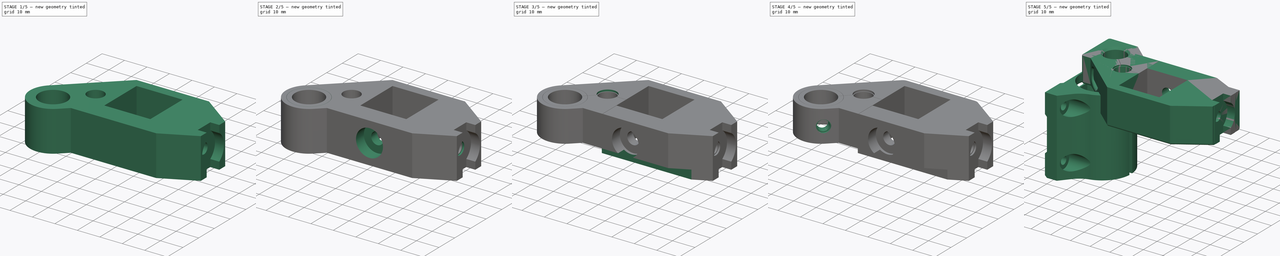
[diagram: build sequence overview — one tinted view per stage of 5, left to right]
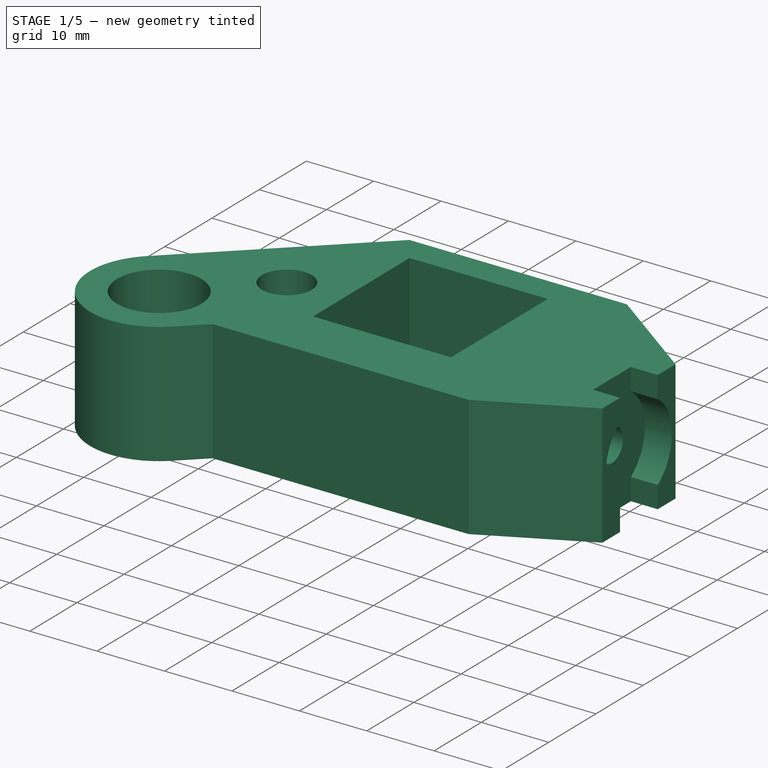
[diagram: stage 1 of 5 — iso view after this stage's code; geometry added in this stage tinted green]
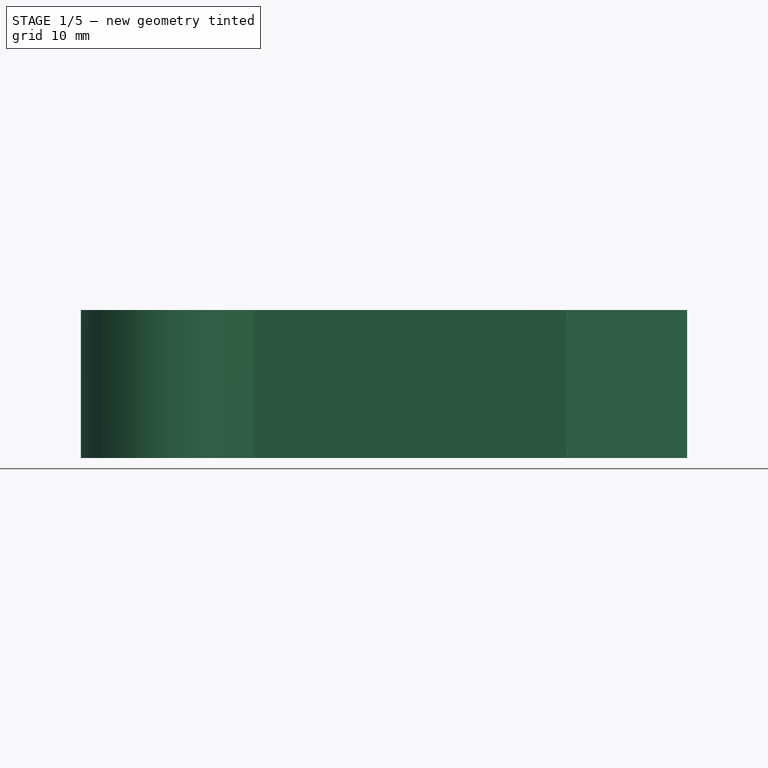
[diagram: stage 1 of 5 — front view after this stage's code; geometry added in this stage tinted green]
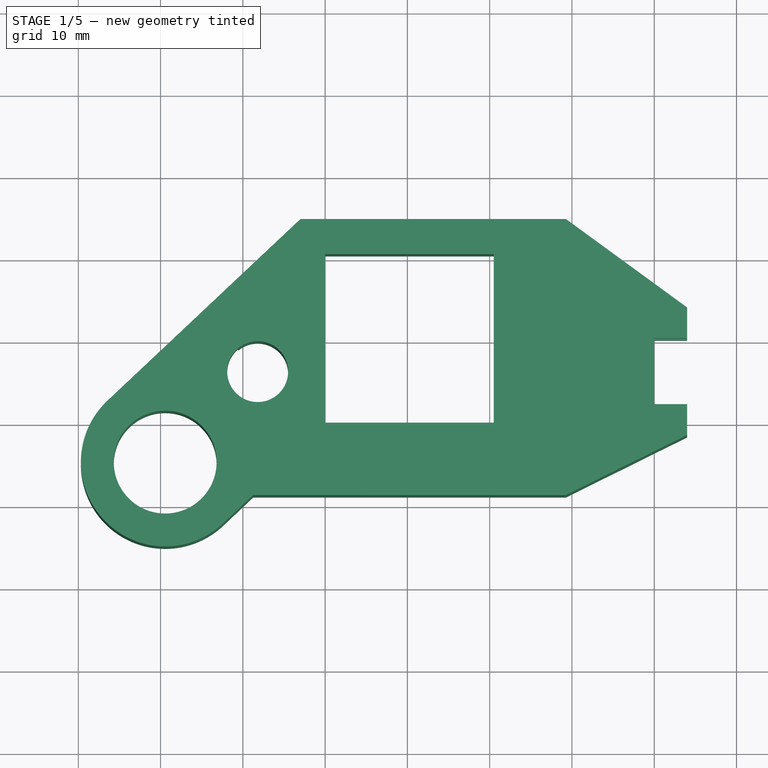
[diagram: stage 1 of 5 — top view after this stage's code; geometry added in this stage tinted green]
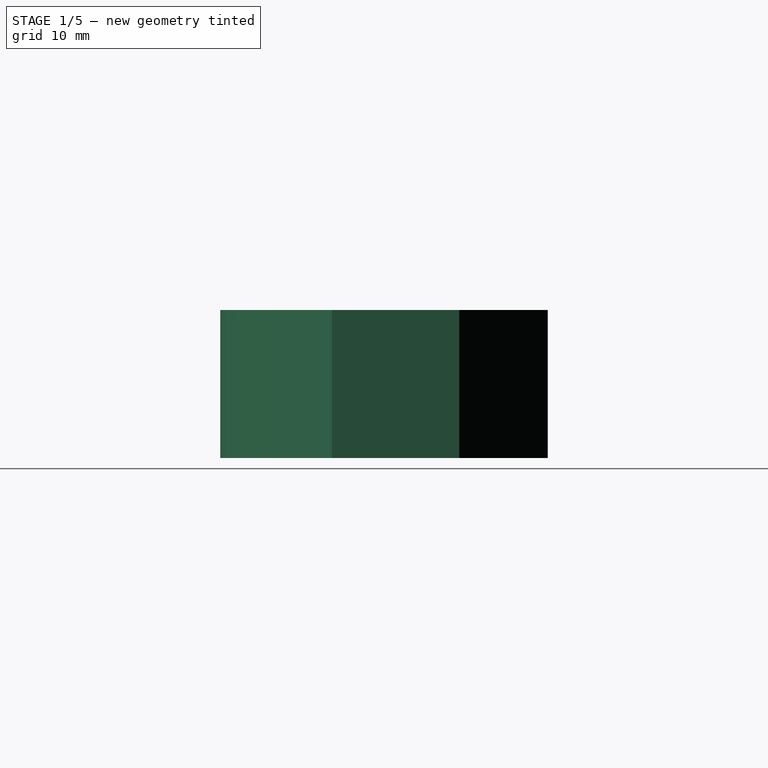
[diagram: stage 1 of 5 — right view after this stage's code; geometry added in this stage tinted green]
FCSTD DOCUMENT  (FreeCAD 0.17R13528 (Git))
Label: y_corner_left_v1.4-12mm
License: CreativeCommons Attribution-ShareAlike
LicenseURL: http://creativecommons.org/licenses/by-sa/4.0/
objects: Sketcher::SketchObject×14, PartDesign::Pocket×13, PartDesign::Fillet×3, Part::FeaturePython×2, PartDesign::Pad×1, PartDesign::Body×1, Part::Mirroring×1
note: 49 computed .brp shape members not serialized (recipe doc carries the construction recipe); baked Part::Feature solids carry a one-line shape summary decoded from their .brp

FEATURE [Sketcher::SketchObject] Sketch
  MapMode = 5
  Support = -> [XY_Plane]
  sketch-geometry (19):
    g0: LineSegment StartX=44 StartY=14 StartZ=0 EndX=29.2653 EndY=24.75 EndZ=0
    g1: LineSegment StartX=29.2653 StartY=24.75 StartZ=0 EndX=-3 EndY=24.75 EndZ=0
    g2: LineSegment StartX=-3 StartY=24.75 StartZ=0 EndX=-26.4652 EndY=2.66385 EndZ=0
    g3: Circle CenterX=-8.2 CenterY=6.2 CenterZ=0 NormalX=0 NormalY=0 NormalZ=1 AngleXU=0 Radius=3.7
    g4: Circle CenterX=-19.44 CenterY=-4.8 CenterZ=0 NormalX=0 NormalY=0 NormalZ=1 AngleXU=0 Radius=6.25
    g5: LineSegment StartX=0 StartY=0 StartZ=0 EndX=20.5 EndY=0 EndZ=0
    g6: LineSegment StartX=20.5 StartY=0 StartZ=0 EndX=20.5 EndY=20.5 EndZ=0
    g7: LineSegment StartX=20.5 StartY=20.5 StartZ=0 EndX=0 EndY=20.5 EndZ=0
    g8: LineSegment StartX=0 StartY=20.5 StartZ=0 EndX=0 EndY=0 EndZ=0
    g9: LineSegment StartX=44 StartY=14 StartZ=0 EndX=44 EndY=-1.5 EndZ=0
    g10: LineSegment StartX=44 StartY=-1.5 StartZ=0 EndX=29.2653 EndY=-8.8 EndZ=0
    g11: LineSegment StartX=29.2653 StartY=-8.8 StartZ=0 EndX=-8.73467 EndY=-8.8 EndZ=0
    g12: LineSegment [constr] StartX=-14.6377 StartY=-0.8 StartZ=0 EndX=7.36234 EndY=-0.8 EndZ=0
    g13: LineSegment [constr] StartX=7.36234 StartY=-0.8 StartZ=0 EndX=7.36234 EndY=-8.8 EndZ=0
    g14: LineSegment [constr] StartX=7.36234 StartY=-8.8 StartZ=0 EndX=-14.6377 EndY=-8.8 EndZ=0
    g15: LineSegment [constr] StartX=-14.6377 StartY=-8.8 StartZ=0 EndX=-14.6377 EndY=-0.8 EndZ=0
    g16: LineSegment [constr] StartX=29.2653 StartY=24.75 StartZ=0 EndX=29.2653 EndY=-8.8 EndZ=0
    g17: LineSegment StartX=-8.73467 StartY=-8.8 StartZ=0 EndX=-12.4148 EndY=-12.2639 EndZ=0
    g18: ArcOfCircle CenterX=-19.44 CenterY=-4.8 CenterZ=0 NormalX=0 NormalY=0 NormalZ=1 AngleXU=0 Radius=10.25 StartAngle=2.32593 EndAngle=5.46752
  constraints (53):
    c: Coincident(g0,g1)
    c: Coincident(g1,g2)
    c: Coincident(g5,g6)
    c: Coincident(g6,g7)
    c: Coincident(g7,g8)
    c: Coincident(g8,g5)
    c: Horizontal(g5)
    c: Horizontal(g7)
    c: Vertical(g6)
    c: Vertical(g8)
    c: Coincident(g5,g-1)
    c: Horizontal(g1)
    c: DistanceX(g1) = -3
    c: DistanceY(g1) = 24.75
    c: DistanceY(g0,g0) = 10.75
    c: DistanceX(g3) = -8.2
    c: DistanceY(g3) = 6.2
    c: Radius(g3) = 3.7
    c: DistanceY(g4) = -4.8
    c: Radius(g4) = 6.25
    c: Equal(g5,g8)
    c: DistanceY(g8,g8) = 20.5
    c: DistanceX(g0) = 44
    c: Coincident(g9,g10)
    c: Coincident(g10,g11)
    c: Vertical(g9)
    c: DistanceY(g9,g9) = 15.5
    c: Coincident(g0,g9)
    c: Coincident(g12,g13)
    c: Coincident(g13,g14)
    c: Coincident(g14,g15)
    c: Coincident(g15,g12)
    c: Horizontal(g12)
    c: Horizontal(g14)
    c: Vertical(g13)
    c: Vertical(g15)
    c: DistanceY(g13,g13) = 8
    c: PointOnObject(g12,g4)
    c: PointOnObject(g14,g4)
    c: Horizontal(g11)
    c: Coincident(g10,g16)
    c: Coincident(g0,g16)
    c: Vertical(g16)
    c: PointOnObject(g11,g14)
    c: DistanceX(g12,g12) = 22
    c: Parallel(g17,g2)
    c: DistanceX(g11,g10) = 38
    c: Coincident(g11,g17)
    c: Radius(g18) = 10.25
    c: DistanceX(g4) = -19.44
    c: Coincident(g4,g18)
    c: Tangent(g17,g18) = 1.5708
    c: Tangent(g2,g18) = -1.5708
FEATURE [Sketcher::SketchObject] Sketch001
  MapMode = 5
  Placement = pos=(0,-8.8,0) rot=(1,0,0;1.5708rad)
  sketch-geometry (1):
    g0: Circle CenterX=10.25 CenterY=-9 CenterZ=0 NormalX=0 NormalY=0 NormalZ=1 AngleXU=0 Radius=2.75
  constraints (3):
    c: DistanceX(g0) = 10.25
    c: DistanceY(g0) = -9
    c: Radius(g0) = 2.75
FEATURE [Sketcher::SketchObject] Sketch006
  MapMode = 5
  sketch-geometry (12):
    g0: LineSegment StartX=0 StartY=6.25 StartZ=0 EndX=-4.50034 EndY=6.25 EndZ=0
    g1: LineSegment StartX=-4.50034 StartY=6.25 StartZ=0 EndX=-4.50034 EndY=6.15 EndZ=0
    g2: LineSegment StartX=-4.50034 StartY=6.15 StartZ=0 EndX=0 EndY=6.15 EndZ=0
    g3: LineSegment StartX=0 StartY=6.15 StartZ=0 EndX=0 EndY=6.25 EndZ=0
    g4: LineSegment StartX=-10.8514 StartY=3.61928 StartZ=0 EndX=-15.644 EndY=-1.17332 EndZ=0
    g5: LineSegment StartX=-15.644 StartY=-1.17332 StartZ=0 EndX=-15.5756 EndY=-1.24628 EndZ=0
    g6: LineSegment StartX=-15.5756 StartY=-1.24628 StartZ=0 EndX=-10.7807 EndY=3.54861 EndZ=0
    g7: LineSegment StartX=-10.7807 StartY=3.54861 StartZ=0 EndX=-10.8514 EndY=3.61928 EndZ=0
    g8: LineSegment StartX=0 StartY=0 StartZ=0 EndX=0.1 EndY=0 EndZ=0
    g9: LineSegment StartX=0.1 StartY=0 StartZ=0 EndX=0.1 EndY=-8.75 EndZ=0
    g10: LineSegment StartX=0.1 StartY=-8.75 StartZ=0 EndX=0 EndY=-8.75 EndZ=0
    g11: LineSegment StartX=0 StartY=-8.75 StartZ=0 EndX=0 EndY=0 EndZ=0
  constraints (30):
    c: Coincident(g0,g1)
    c: Coincident(g1,g2)
    c: Coincident(g2,g3)
    c: Coincident(g3,g0)
    c: Horizontal(g0)
    c: Horizontal(g2)
    c: Vertical(g1)
    c: Vertical(g3)
    c: Coincident(g4,g5)
    c: Coincident(g5,g6)
    c: Coincident(g6,g7)
    c: Coincident(g7,g4)
    c: DistanceY(g1,g1) = 0.1
    c: Perpendicular(g6,g7)
    c: Perpendicular(g4,g7)
    c: Angle(g6) = 0.785398
    c: Distance(g5) = 0.1
    c: Coincident(g8,g9)
    c: Coincident(g9,g10)
    c: Coincident(g10,g11)
    c: Coincident(g11,g8)
    c: Horizontal(g8)
    c: Horizontal(g10)
    c: Vertical(g9)
    c: Vertical(g11)
    c: PointOnObject(g8,g-1)
    c: DistanceX(g8,g8) = 0.1
    c: PointOnObject(g2,g-2)
    c: Coincident(g8,g-1)
    c: DistanceY(g9,g9) = 8.75
FEATURE [Sketcher::SketchObject] Sketch012
  MapMode = 5
  Placement = pos=(0,-8.8,0) rot=(1,0,0;1.5708rad)
  sketch-geometry (1):
    g0: Circle CenterX=10.25 CenterY=-9 CenterZ=0 NormalX=0 NormalY=0 NormalZ=1 AngleXU=0 Radius=6
  constraints (3):
    c: Radius(g0) = 6
    c: DistanceX(g0) = 10.25
    c: DistanceY(g0) = -9
FEATURE [PartDesign::Pad] Pad
  Length = 18
  Length2 = 100
  Profile = -> Sketch
  Refine = true
  Reversed = true
  Type = 0
FEATURE [Sketcher::SketchObject] Sketch002
  ExternalGeometry = -> [Pad]
  MapMode = 5
  Placement = pos=(0,0,-18) rot=(1,0,0;3.14159rad)
  sketch-geometry (6):
    g0: Circle [constr] CenterX=-19.44 CenterY=4.8 CenterZ=0 NormalX=0 NormalY=0 NormalZ=1 AngleXU=0 Radius=16.5
    g1: LineSegment StartX=-8.73467 StartY=8.8 StartZ=0 EndX=-3.43219 EndY=8.8 EndZ=0
    g2: LineSegment StartX=-10.0027 StartY=0.8 StartZ=0 EndX=-3.43219 EndY=0.8 EndZ=0
    g3: ArcOfCircle CenterX=-19.44 CenterY=4.8 CenterZ=0 NormalX=0 NormalY=0 NormalZ=1 AngleXU=0 Radius=16.5 StartAngle=0.244864 EndAngle=6.03832
    g4: ArcOfCircle CenterX=-19.44 CenterY=4.8 CenterZ=0 NormalX=0 NormalY=0 NormalZ=1 AngleXU=0 Radius=10.25 StartAngle=0.815664 EndAngle=5.88229
    g5: LineSegment StartX=-12.4148 StartY=12.2639 StartZ=0 EndX=-8.73467 EndY=8.8 EndZ=0
  constraints (18):
    c: Radius(g0) = 16.5
    c: DistanceX(g0) = -19.44
    c: DistanceY(g0) = 4.8
    c: Horizontal(g2)
    c: Horizontal(g1)
    c: DistanceY(g2,g1) = 8
    c: PointOnObject(g2,g0)
    c: PointOnObject(g1,g0)
    c: Coincident(g0,g3)
    c: Coincident(g1,g3)
    c: Coincident(g2,g3)
    c: Coincident(g0,g4)
    c: Coincident(g2,g4)
    c: Radius(g4) = 10.25
    c: DistanceY(g2,g0) = 4
    c: Coincident(g1,g5)
    c: Coincident(g1,g-3)
    c: Tangent(g4,g5) = 1.5708
FEATURE [PartDesign::Pocket] Pocket
  BaseFeature = -> Pad
  Length = 9
  Length2 = 100
  Profile = -> Sketch002
  Refine = true
  Type = 0
FEATURE [Sketcher::SketchObject] Sketch004
  MapMode = 5
  Placement = pos=(44,0,0) rot=(0.57735,0.57735,0.57735;2.0944rad)
  Support = -> [Pocket]
  sketch-geometry (8):
    g0: ArcOfCircle CenterX=6.25 CenterY=-9 CenterZ=0 NormalX=0 NormalY=0 NormalZ=1 AngleXU=0 Radius=7.00446 StartAngle=5.32019 EndAngle=7.24618
    g1: LineSegment StartX=2.25 StartY=0 StartZ=0 EndX=10.25 EndY=0 EndZ=0
    g2: LineSegment StartX=10.25 StartY=0 StartZ=0 EndX=10.25 EndY=-3.25 EndZ=0
    g3: LineSegment StartX=10.25 StartY=-18 StartZ=0 EndX=2.25 EndY=-18 EndZ=0
    g4: LineSegment StartX=2.25 StartY=-18 StartZ=0 EndX=2.25 EndY=-14.75 EndZ=0
    g5: LineSegment StartX=2.25 StartY=-3.25 StartZ=0 EndX=2.25 EndY=0 EndZ=0
    g6: LineSegment StartX=10.25 StartY=-14.75 StartZ=0 EndX=10.25 EndY=-18 EndZ=0
    g7: ArcOfCircle CenterX=6.25 CenterY=-9 CenterZ=0 NormalX=0 NormalY=0 NormalZ=1 AngleXU=0 Radius=7.00446 StartAngle=2.1786 EndAngle=4.10459
  constraints (23):
    c: Coincident(g1,g2)
    c: Coincident(g6,g3)
    c: Coincident(g3,g4)
    c: Coincident(g5,g1)
    c: Horizontal(g1)
    c: Horizontal(g3)
    c: Vertical(g2)
    c: PointOnObject(g1,g-1)
    c: DistanceY(g4,g5) = 18
    c: DistanceX(g1) = 2.25
    c: DistanceX(g1,g1) = 8
    c: Tangent(g4,g5)
    c: Tangent(g2,g6)
    c: Coincident(g0,g6)
    c: Coincident(g7,g4)
    c: Equal(g0,g7)
    c: Coincident(g0,g2)
    c: Coincident(g7,g5)
    c: Coincident(g0,g7)
    c: Equal(g5,g2)
    c: Equal(g2,g6)
    c: Equal(g6,g4)
    c: DistanceY(g4,g4) = 3.25
FEATURE [PartDesign::Pocket] Pocket001
  BaseFeature = -> Pocket
  Length = 4
  Length2 = 100
  Profile = -> Sketch004
  Refine = true
  Type = 0
FEATURE [Sketcher::SketchObject] Sketch005
  MapMode = 5
  Placement = pos=(40,0,0) rot=(0.57735,0.57735,0.57735;2.0944rad)
  Support = -> [Pocket001]
  sketch-geometry (1):
    g0: Circle CenterX=6.25 CenterY=-9 CenterZ=0 NormalX=0 NormalY=0 NormalZ=1 AngleXU=0 Radius=2.35
  constraints (1):
    c: Radius(g0) = 2.35
FEATURE [PartDesign::Pocket] Pocket002
  BaseFeature = -> Pocket001
  Length = 7
  Length2 = 100
  Profile = -> Sketch005
  Refine = true
  Type = 0
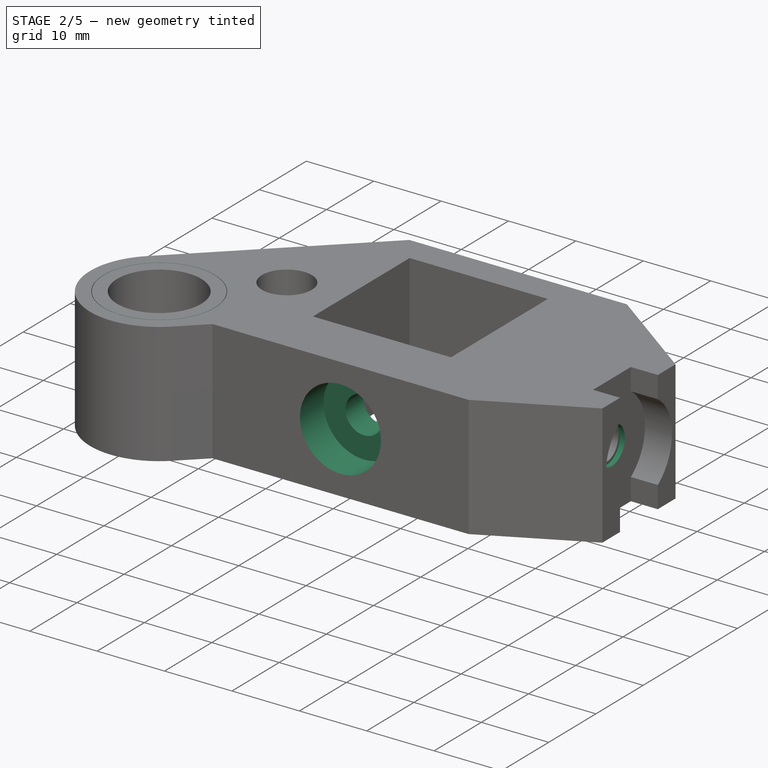
[diagram: stage 2 of 5 — iso view after this stage's code; geometry added in this stage tinted green]
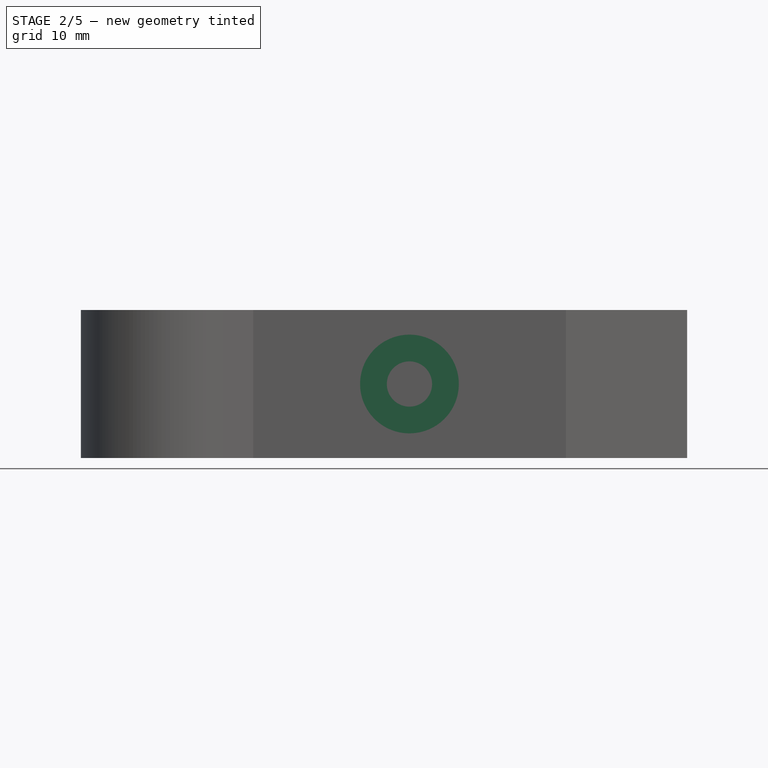
[diagram: stage 2 of 5 — front view after this stage's code; geometry added in this stage tinted green]
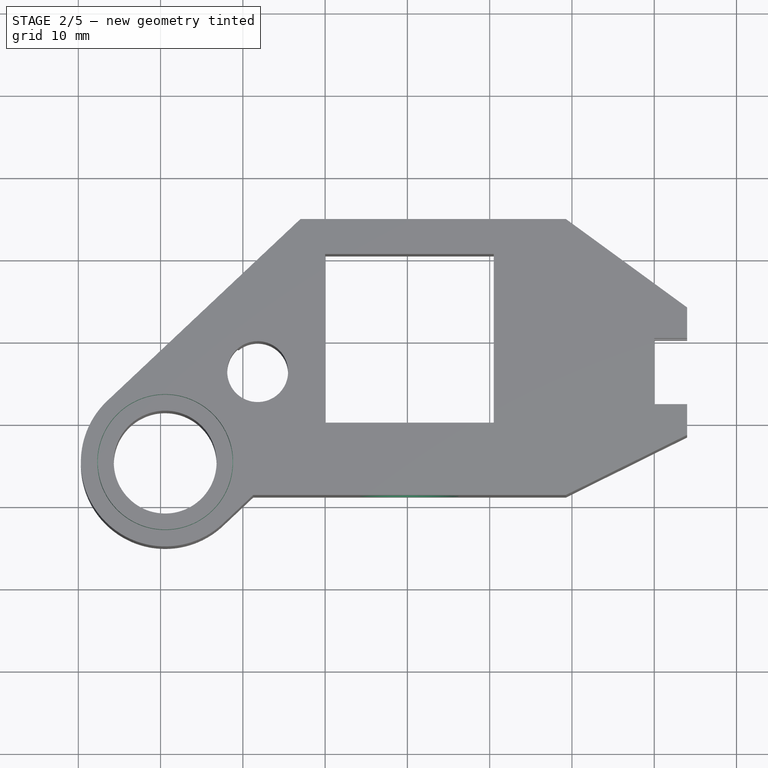
[diagram: stage 2 of 5 — top view after this stage's code; geometry added in this stage tinted green]
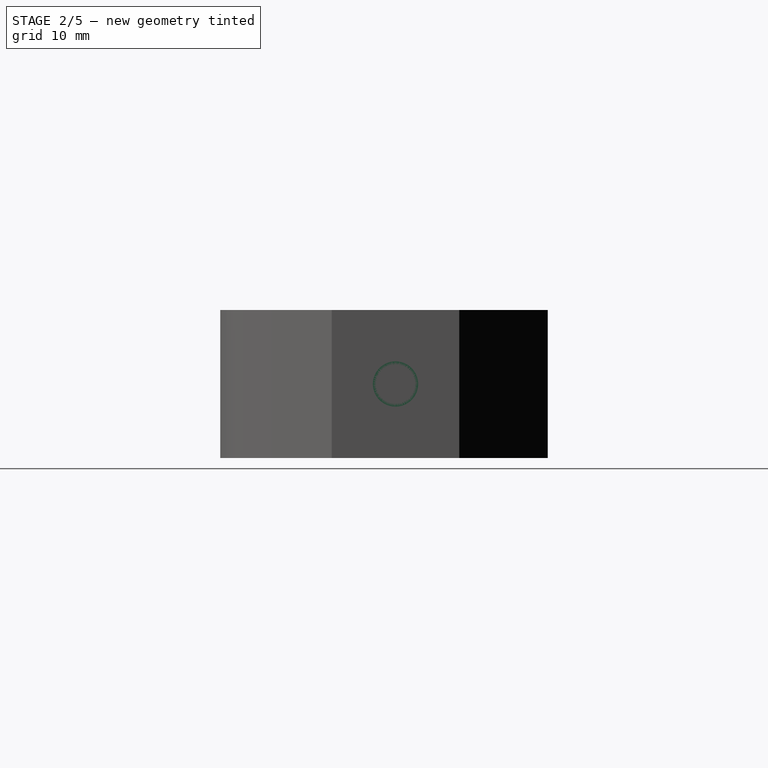
[diagram: stage 2 of 5 — right view after this stage's code; geometry added in this stage tinted green]
FEATURE [PartDesign::Pocket] Pocket003
  BaseFeature = -> Pocket002
  Length = 10
  Length2 = 100
  Profile = -> Sketch001
  Refine = true
  Type = 0
FEATURE [PartDesign::Pocket] Pocket004
  BaseFeature = -> Pocket003
  Length = 5
  Length2 = 100
  Profile = -> Sketch012
  Refine = true
  Type = 0
FEATURE [PartDesign::Pocket] Pocket005
  BaseFeature = -> Pocket004
  Length = 0.75
  Length2 = 100
  Profile = -> Sketch016
  Refine = true
  Type = 0
FEATURE [PartDesign::Pocket] Pocket006
  BaseFeature = -> Pocket005
  Length = 9
  Length2 = 100
  Profile = -> Sketch017
  Refine = true
  Type = 0
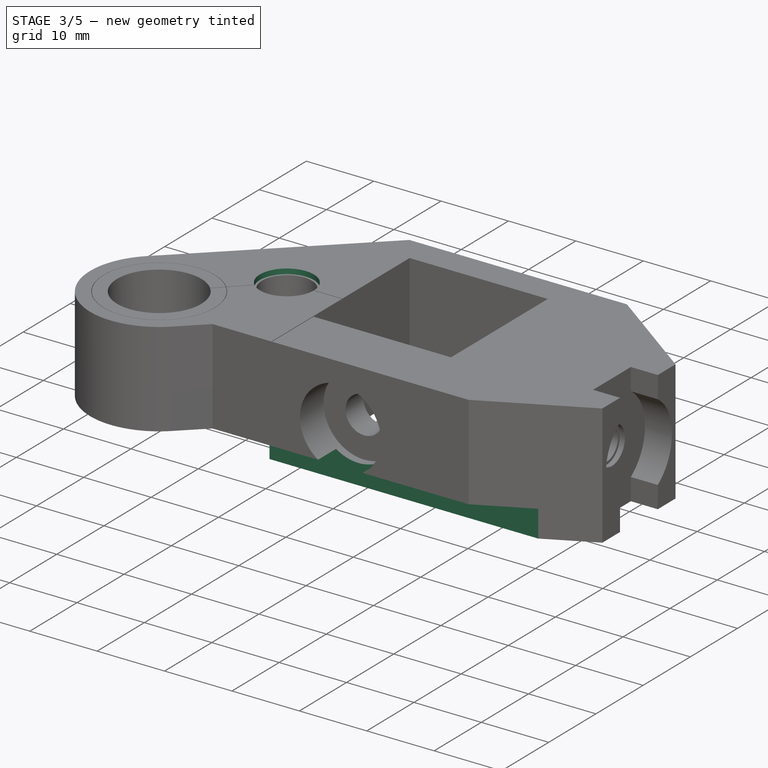
[diagram: stage 3 of 5 — iso view after this stage's code; geometry added in this stage tinted green]
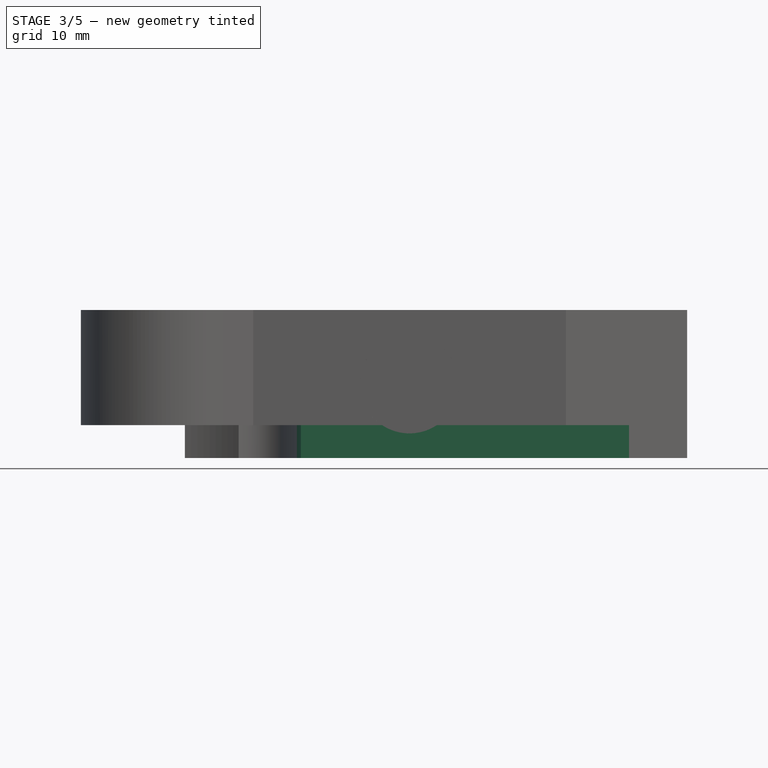
[diagram: stage 3 of 5 — front view after this stage's code; geometry added in this stage tinted green]
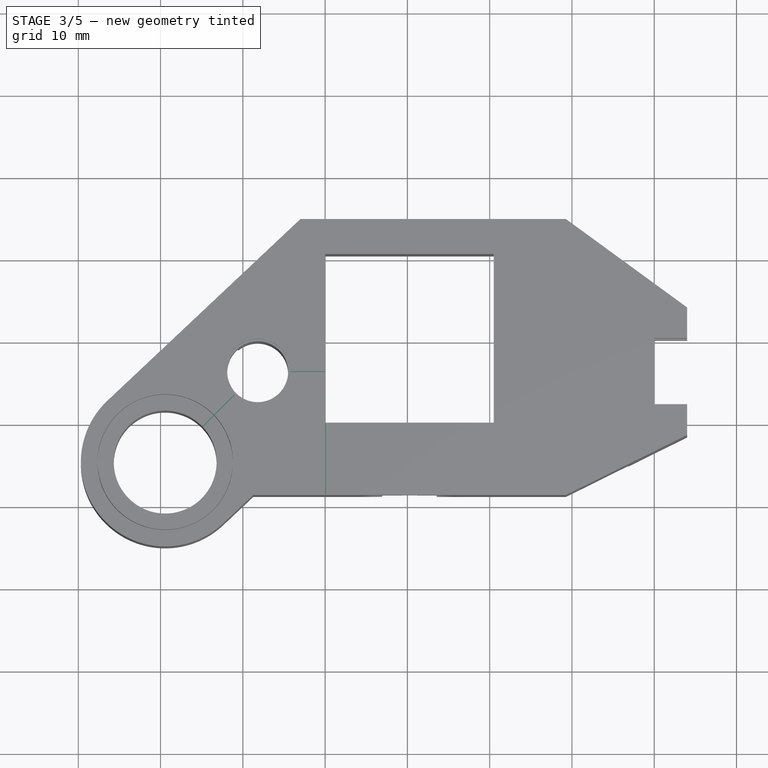
[diagram: stage 3 of 5 — top view after this stage's code; geometry added in this stage tinted green]
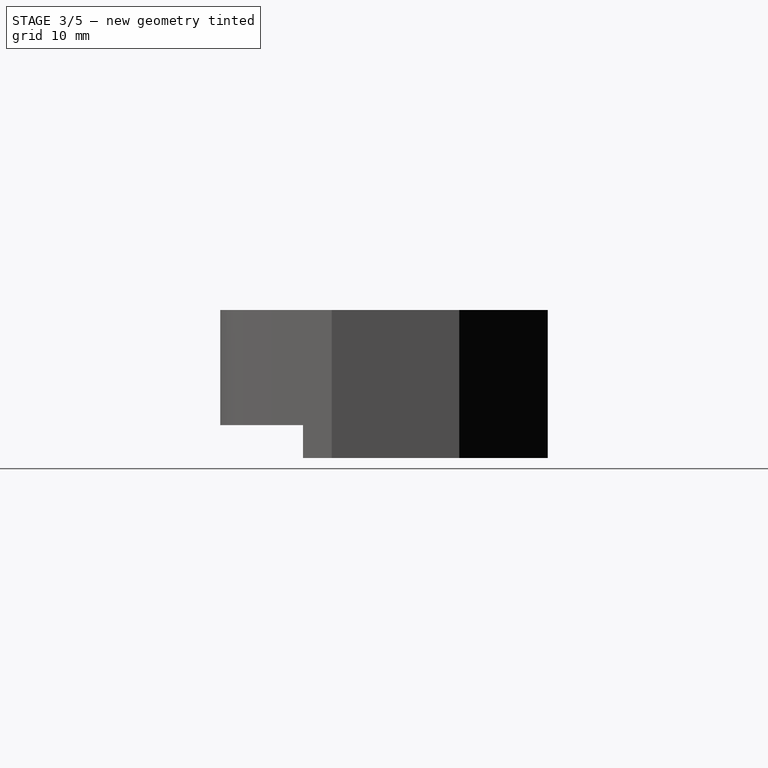
[diagram: stage 3 of 5 — right view after this stage's code; geometry added in this stage tinted green]
FEATURE [PartDesign::Pocket] Pocket007
  BaseFeature = -> Pocket006
  Length = 4
  Length2 = 100
  Profile = -> Sketch019
  Refine = true
  Type = 0
FEATURE [PartDesign::Pocket] Pocket008
  BaseFeature = -> Pocket007
  Length = 8
  Length2 = 100
  Profile = -> Sketch020
  Refine = true
  Type = 0
FEATURE [PartDesign::Pocket] Pocket009
  BaseFeature = -> Pocket008
  Length = 0.75
  Length2 = 100
  Profile = -> Sketch021
  Refine = true
  Type = 0
FEATURE [PartDesign::Pocket] Pocket010
  BaseFeature = -> Pocket009
  Length = 0.3
  Length2 = 100
  Profile = -> Sketch006
  Refine = true
  Type = 0
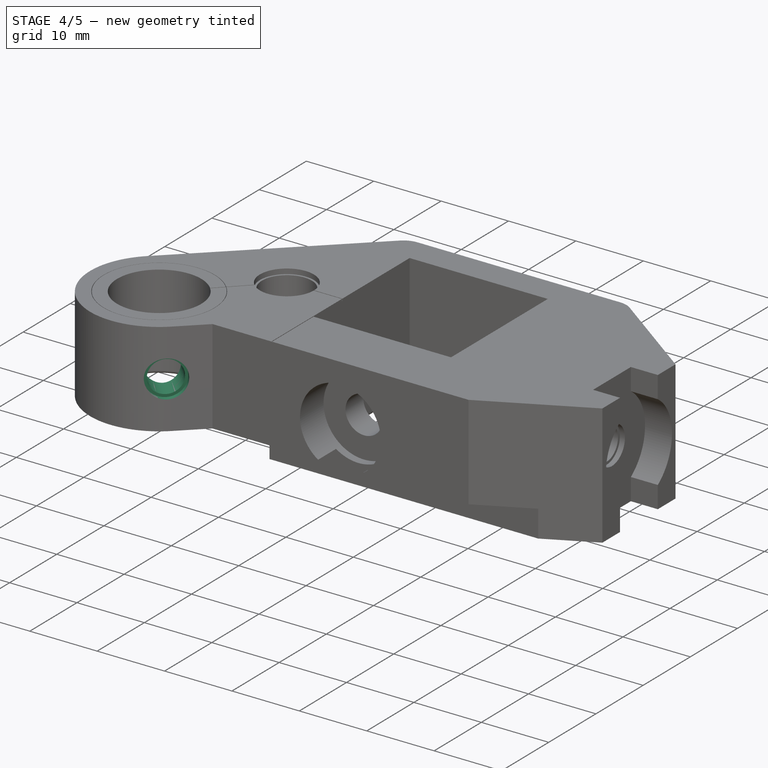
[diagram: stage 4 of 5 — iso view after this stage's code; geometry added in this stage tinted green]
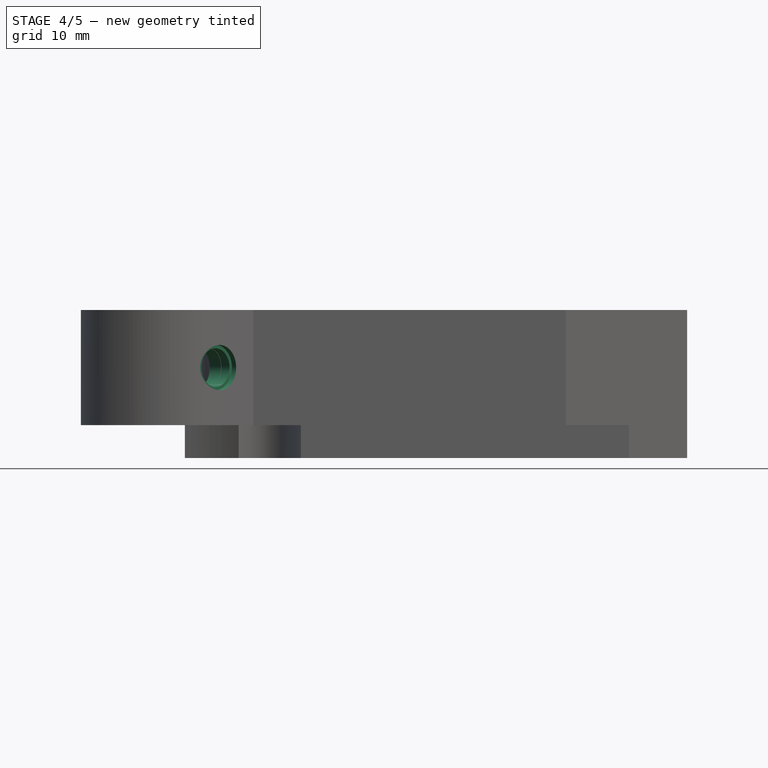
[diagram: stage 4 of 5 — front view after this stage's code; geometry added in this stage tinted green]
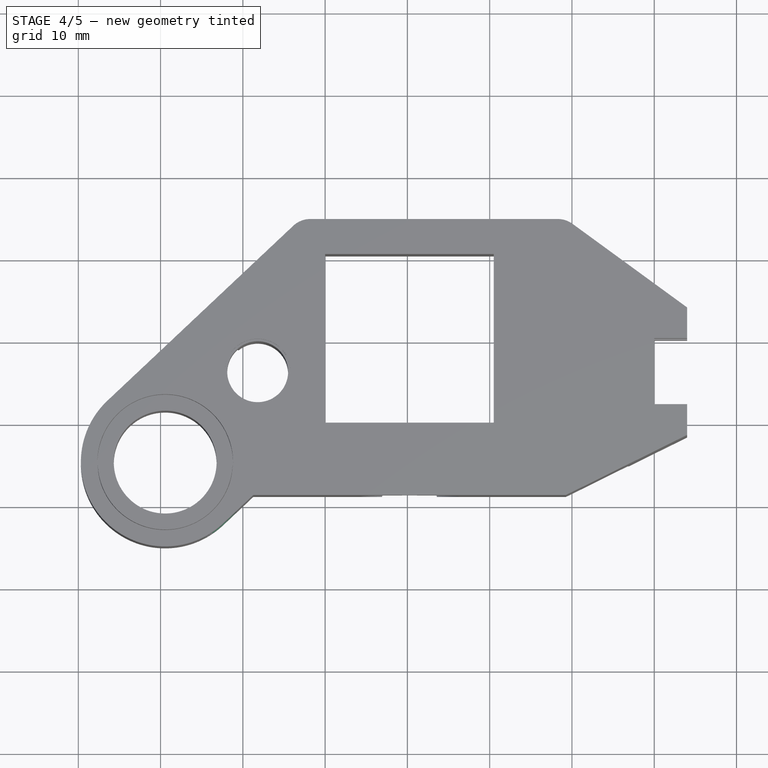
[diagram: stage 4 of 5 — top view after this stage's code; geometry added in this stage tinted green]
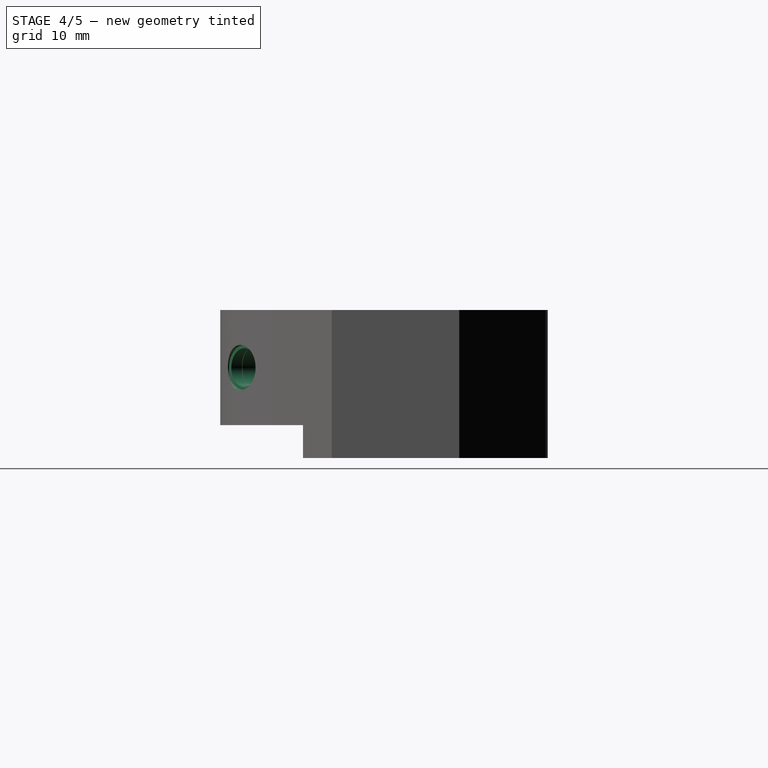
[diagram: stage 4 of 5 — right view after this stage's code; geometry added in this stage tinted green]
FEATURE [Sketcher::SketchObject] Sketch022
  MapMode = 5
  Placement = pos=(0.288804,-0.306837,0) rot=(0.872183,0.345902,0.345902;1.70713rad)
  Support = -> [Pocket010]
  sketch-geometry (1):
    g0: Circle CenterX=-18 CenterY=-7 CenterZ=0 NormalX=0 NormalY=0 NormalZ=1 AngleXU=0 Radius=2.35
  constraints (3):
    c: Radius(g0) = 2.35
    c: DistanceX(g0) = -18
    c: DistanceY(g0) = -7
FEATURE [PartDesign::Pocket] Pocket011
  BaseFeature = -> Pocket010
  Length = 8
  Length2 = 100
  Profile = -> Sketch022
  Refine = true
  Type = 0
FEATURE [Sketcher::SketchObject] Sketch023
  MapMode = 5
  Placement = pos=(0.288804,-0.306837,0) rot=(0.872183,0.345902,0.345902;1.70713rad)
  Support = -> [Pocket011]
  sketch-geometry (1):
    g0: Circle CenterX=-18 CenterY=-7 CenterZ=0 NormalX=0 NormalY=0 NormalZ=1 AngleXU=0 Radius=2.75
  constraints (3):
    c: DistanceX(g0) = -18
    c: DistanceY(g0) = -7
    c: Radius(g0) = 2.75
FEATURE [PartDesign::Pocket] Pocket012
  BaseFeature = -> Pocket011
  Length = 0.75
  Length2 = 100
  Profile = -> Sketch023
  Refine = true
  Type = 0
FEATURE [PartDesign::Fillet] Fillet
  Base = -> Pocket012 [Edge52,Edge54,Edge53,Edge55,Edge144]
  BaseFeature = -> Pocket012
  Radius = 0.5
FEATURE [PartDesign::Fillet] Fillet001
  Base = -> Fillet [Edge67,Edge70]
  BaseFeature = -> Fillet
  Radius = 3
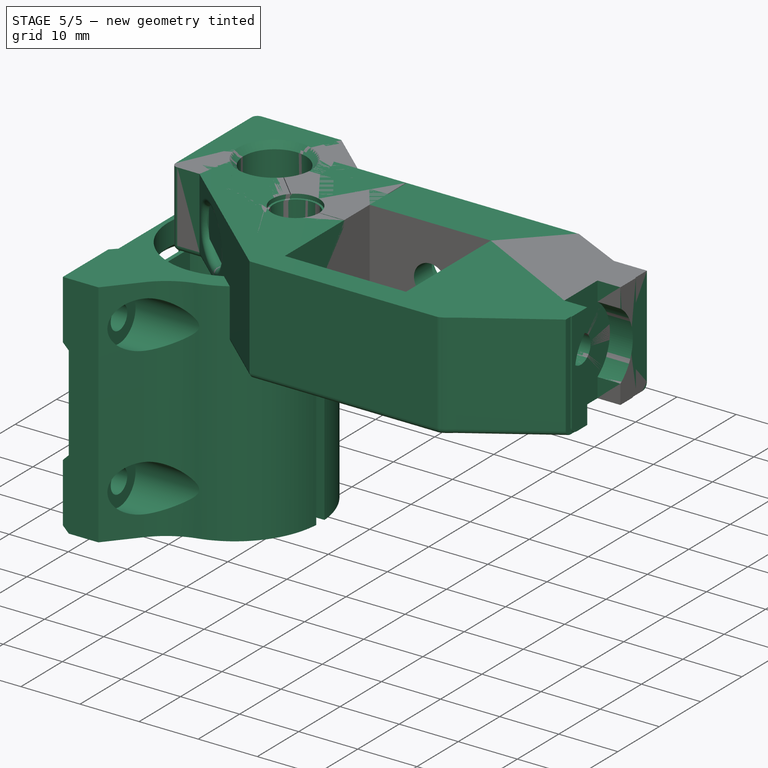
[diagram: stage 5 of 5 — iso view after this stage's code; geometry added in this stage tinted green]
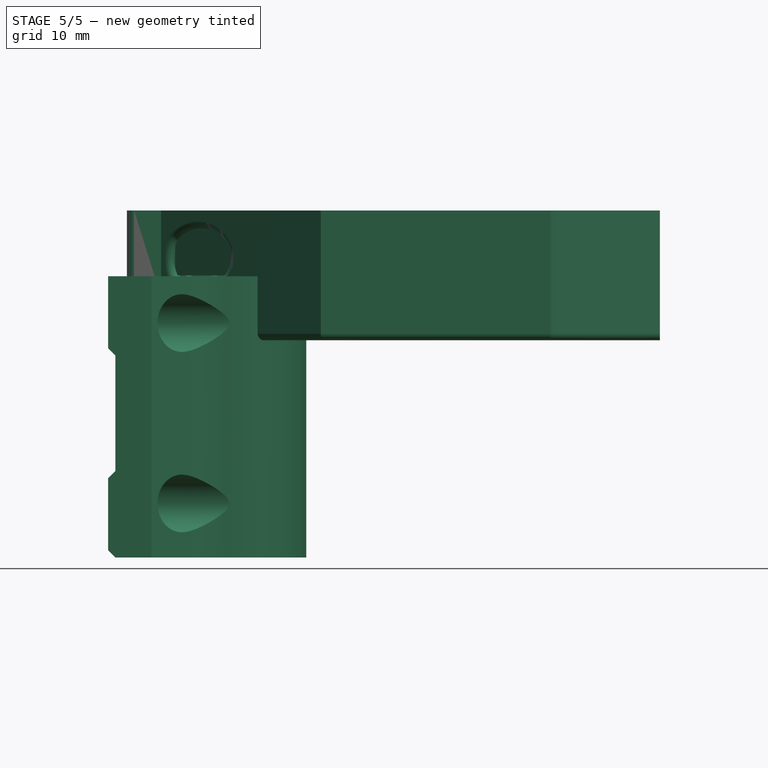
[diagram: stage 5 of 5 — front view after this stage's code; geometry added in this stage tinted green]
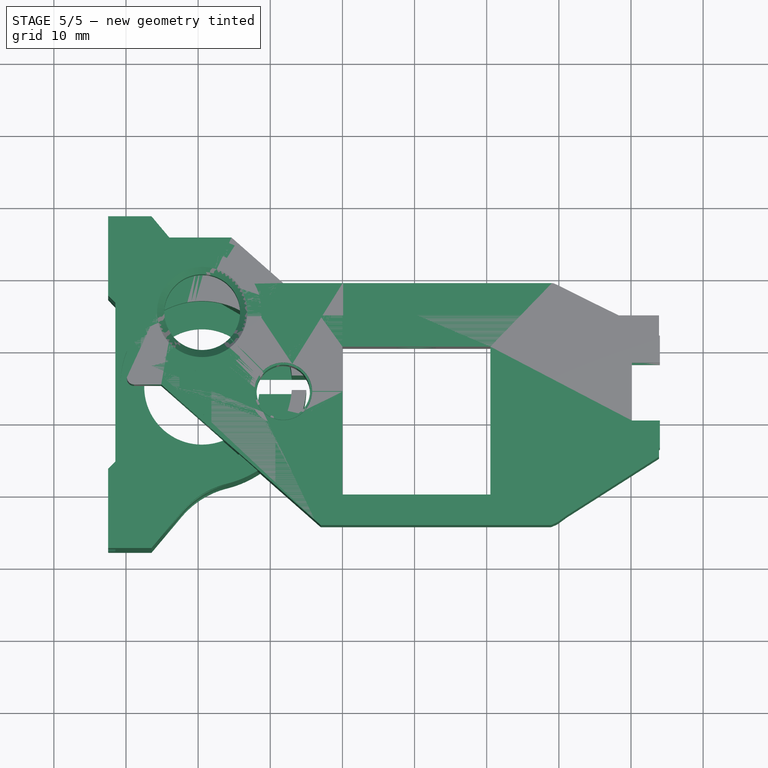
[diagram: stage 5 of 5 — top view after this stage's code; geometry added in this stage tinted green]
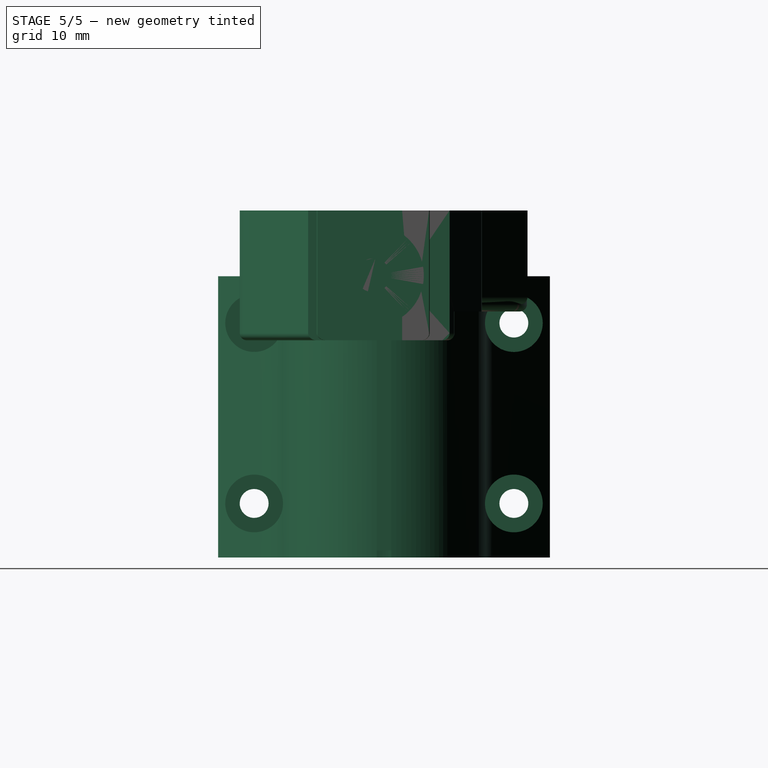
[diagram: stage 5 of 5 — right view after this stage's code; geometry added in this stage tinted green]
FEATURE [Sketcher::SketchObject] Sketch016
  MapMode = 5
  Placement = pos=(40,0,0) rot=(0.57735,0.57735,0.57735;2.0944rad)
  sketch-geometry (1):
    g0: Circle CenterX=6.25 CenterY=-9 CenterZ=0 NormalX=0 NormalY=0 NormalZ=1 AngleXU=0 Radius=2.75
  constraints (3):
    c: DistanceX(g0) = 6.25
    c: DistanceY(g0) = -9
    c: Radius(g0) = 2.75
FEATURE [Sketcher::SketchObject] Sketch017
  MapMode = 5
  sketch-geometry (2):
    g0: Circle CenterX=-19.44 CenterY=-4.8 CenterZ=0 NormalX=0 NormalY=0 NormalZ=1 AngleXU=0 Radius=8.25
    g1: Circle CenterX=-19.44 CenterY=-4.8 CenterZ=0 NormalX=0 NormalY=0 NormalZ=1 AngleXU=0 Radius=8.2
  constraints (5):
    c: Coincident(g1,g0)
    c: DistanceX(g0) = -19.44
    c: DistanceY(g0) = -4.8
    c: Radius(g0) = 8.25
    c: Radius(g1) = 8.2
FEATURE [Part::FeaturePython] y_corner_left_v1_2_01  # a2plus imported part (geometry in sourceFile) (typed FeaturePython)
  fixedPosition = true
  sourceFile = <userpath>/Desktop/printers/syn1/printed_parts/y_corner_left/y_corner_left_v1.2.FCStd
  timeLastImport = 1.58103e+09
  updateColors = true
FEATURE [Sketcher::SketchObject] Sketch019
  MapMode = 5
  Placement = pos=(0,0,-18) rot=(1,0,0;3.14159rad)
  sketch-geometry (5):
    g0: ArcOfCircle CenterX=-19.44 CenterY=4.8 CenterZ=0 NormalX=0 NormalY=0 NormalZ=1 AngleXU=0 Radius=16.5 StartAngle=0.520103 EndAngle=6.29531
    g1: LineSegment StartX=-5.12183 StartY=13 StartZ=0 EndX=29 EndY=13 EndZ=0
    g2: LineSegment StartX=29 StartY=13 StartZ=0 EndX=44 EndY=5.75 EndZ=0
    g3: LineSegment StartX=44 StartY=5 StartZ=0 EndX=-2.94121 EndY=5 EndZ=0
    g4: LineSegment StartX=44 StartY=5 StartZ=0 EndX=44 EndY=5.75 EndZ=0
  constraints (16):
    c: Coincident(g1,g2)
    c: Horizontal(g1)
    c: Horizontal(g3)
    c: Coincident(g0,g3)
    c: Coincident(g0,g1)
    c: DistanceY(g3,g1) = 8
    c: Coincident(g4,g3)
    c: Vertical(g4)
    c: Coincident(g2,g4)
    c: DistanceX(g-1,g3) = 44
    c: DistanceX(g2,g2) = 15
    c: DistanceY(g2,g2) = 7.25
    c: DistanceY(g0) = 5
    c: Radius(g0) = 16.5
    c: DistanceX(g0) = -19.44
    c: DistanceY(g0) = 4.8
FEATURE [Sketcher::SketchObject] Sketch020
  MapMode = 5
  Placement = pos=(0,0,-9) rot=(1,0,0;3.14159rad)
  sketch-geometry (16):
    g0: LineSegment StartX=-8.70163 StartY=5.3 StartZ=0 EndX=0 EndY=5.3 EndZ=0
    g1: LineSegment StartX=0 StartY=5.3 StartZ=0 EndX=0 EndY=4.3 EndZ=0
    g2: LineSegment StartX=0 StartY=4.3 StartZ=0 EndX=-8.70163 EndY=4.3 EndZ=0
    g3: LineSegment StartX=-9.11709 StartY=7.8 StartZ=0 EndX=0 EndY=7.8 EndZ=0
    g4: LineSegment StartX=0 StartY=7.8 StartZ=0 EndX=0 EndY=6.8 EndZ=0
    g5: LineSegment StartX=0 StartY=6.8 StartZ=0 EndX=-8.87768 EndY=6.8 EndZ=0
    g6: LineSegment StartX=-8.87768 StartY=2.8 StartZ=0 EndX=0 EndY=2.8 EndZ=0
    g7: LineSegment StartX=0 StartY=2.8 StartZ=0 EndX=0 EndY=1.8 EndZ=0
    g8: LineSegment StartX=0 StartY=1.8 StartZ=0 EndX=-9.11709 EndY=1.8 EndZ=0
    g9: ArcOfCircle CenterX=-19.44 CenterY=4.8 CenterZ=0 NormalX=0 NormalY=0 NormalZ=1 AngleXU=0 Radius=10.75 StartAngle=0.187137 EndAngle=0.282825
    g10: ArcOfCircle CenterX=-19.44 CenterY=4.8 CenterZ=0 NormalX=0 NormalY=0 NormalZ=1 AngleXU=0 Radius=10.75 StartAngle=6.00036 EndAngle=6.09605
    g11: ArcOfCircle CenterX=-19.44 CenterY=4.8 CenterZ=0 NormalX=0 NormalY=0 NormalZ=1 AngleXU=0 Radius=10.75 StartAngle=6.23666 EndAngle=6.32971
    g12: LineSegment [constr] StartX=-9.11709 StartY=7.8 StartZ=0 EndX=0 EndY=7.8 EndZ=0
    g13: LineSegment [constr] StartX=0 StartY=7.8 StartZ=0 EndX=0 EndY=1.8 EndZ=0
    g14: LineSegment [constr] StartX=0 StartY=1.8 StartZ=0 EndX=-9.11709 EndY=1.8 EndZ=0
    g15: LineSegment [constr] StartX=-9.11709 StartY=1.8 StartZ=0 EndX=-9.11709 EndY=7.8 EndZ=0
  constraints (47):
    c: Coincident(g0,g1)
    c: Coincident(g1,g2)
    c: Horizontal(g0)
    c: Horizontal(g2)
    c: Vertical(g1)
    c: PointOnObject(g1,g-2)
    c: Coincident(g3,g4)
    c: Coincident(g4,g5)
    c: Horizontal(g3)
    c: Horizontal(g5)
    c: Vertical(g4)
    c: PointOnObject(g4,g-2)
    c: Coincident(g6,g7)
    c: Coincident(g7,g8)
    c: Horizontal(g6)
    c: Horizontal(g8)
    c: Vertical(g7)
    c: PointOnObject(g7,g-2)
    c: Coincident(g9,g3)
    c: Coincident(g10,g9)
    c: Coincident(g10,g8)
    c: Coincident(g6,g10)
    c: Coincident(g5,g9)
    c: Radius(g9) = 10.75
    c: Equal(g10,g9)
    c: Coincident(g11,g9)
    c: Coincident(g11,g0)
    c: Coincident(g11,g2)
    c: Equal(g11,g9)
    c: Coincident(g12,g13)
    c: Coincident(g13,g14)
    c: Coincident(g14,g15)
    c: Coincident(g15,g12)
    c: Horizontal(g12)
    c: Horizontal(g14)
    c: Vertical(g13)
    c: Vertical(g15)
    c: Coincident(g12,g3)
    c: Coincident(g13,g7)
    c: Coincident(g8,g14)
    c: Equal(g4,g1)
    c: Equal(g1,g7)
    c: DistanceY(g6,g1) = 1.5
    c: DistanceY(g0,g4) = 1.5
    c: DistanceY(g4,g4) = 1
    c: DistanceX(g9) = -19.44
    c: DistanceY(g9) = 4.8
FEATURE [Sketcher::SketchObject] Sketch021
  MapMode = 5
  sketch-geometry (1):
    g0: Circle CenterX=-8.2 CenterY=6.2 CenterZ=0 NormalX=0 NormalY=0 NormalZ=1 AngleXU=0 Radius=4
  constraints (3):
    c: Radius(g0) = 4
    c: DistanceX(g0) = -8.2
    c: DistanceY(g0) = 6.2
FEATURE [Part::FeaturePython] Y_bearing_holder_v1_3_1_12mm_01  # a2plus imported part (geometry in sourceFile) (typed FeaturePython)
  Placement = pos=(-19.4748,-4.7635,-48.1134) rot=(0,0,1;4.71239rad)
  fixedPosition = false
  sourceFile = <userpath>/Desktop/printers/syn1/printed_parts/y_bearing_holder/Y_bearing_holder_v1.3.1-12mm.FCStd
  timeLastImport = 1.58138e+09
  updateColors = true
FEATURE [PartDesign::Fillet] Fillet002
  Base = -> Fillet001 [Edge4,Edge13,Edge54,Edge15,Edge63,Edge116,Edge111,Edge110,Edge107,Edge26,Edge102]
  BaseFeature = -> Fillet001
  Radius = 1
FEATURE [PartDesign::Body] Body
  Group = -> [Sketch,Sketch001,Sketch002,Sketch004,Sketch005,Sketch006,Sketch012,Pad,Pocket,Pocket001,Pocket002,Sketch016,Sketch017,Sketch019,Sketch020,Sketch021,Pocket003,Pocket004,Pocket005,Pocket006,Pocket007,Pocket008,Pocket009,Pocket010,Sketch022,Pocket011,Sketch023,Pocket012,Fillet,Fillet001,Fillet002]
  Origin = -> Origin
  Tip = -> Fillet002
FEATURE [Part::Mirroring] Part__Mirroring  label="Fillet002 (Mirror #1)"
  Base = (0,0,0)
  Normal = (0,1,0)
  Source = -> Fillet002
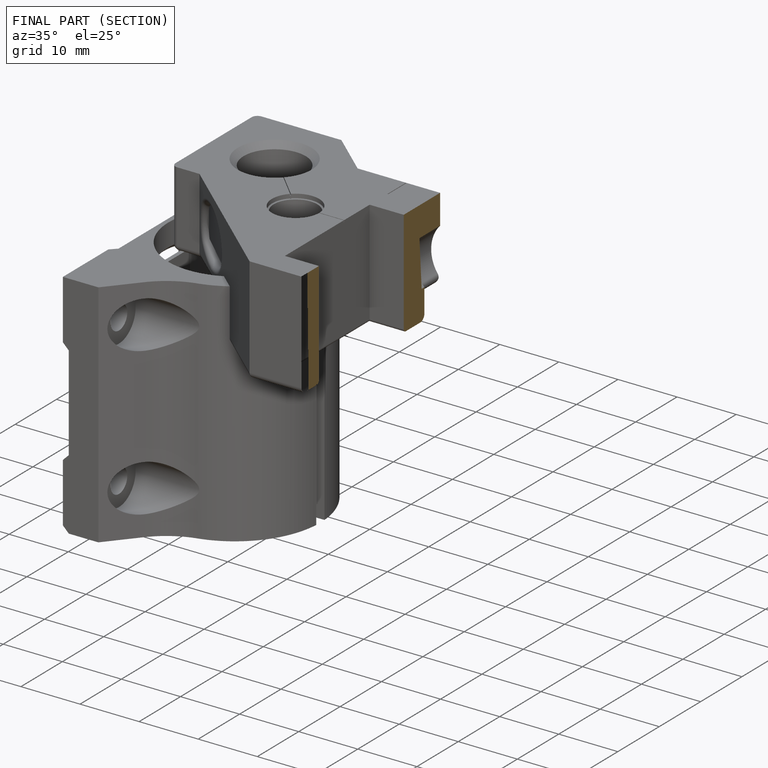
[diagram: finished part — half-section view (interior)]
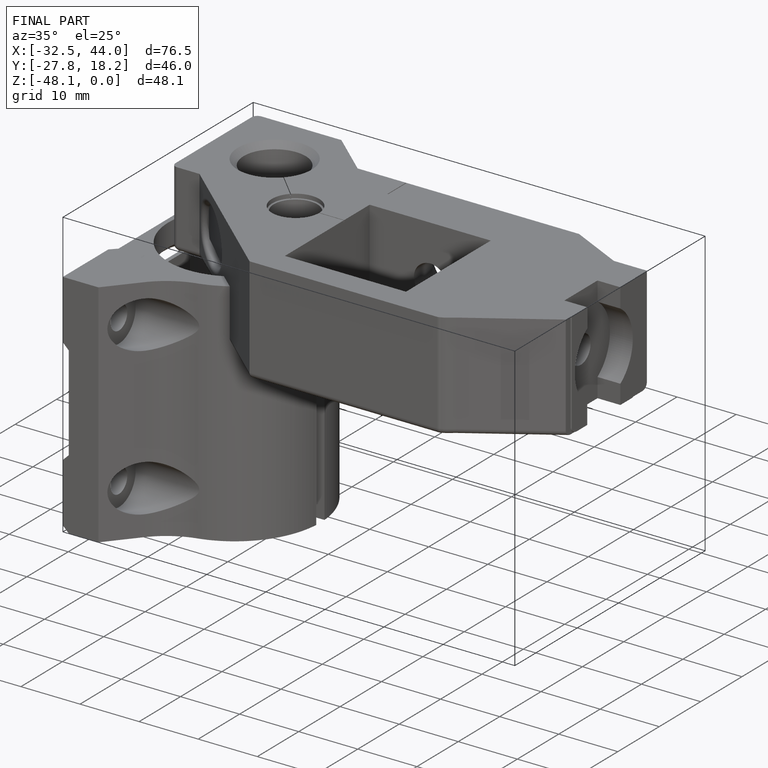
[diagram: finished part — iso view with bounding-box wireframe]
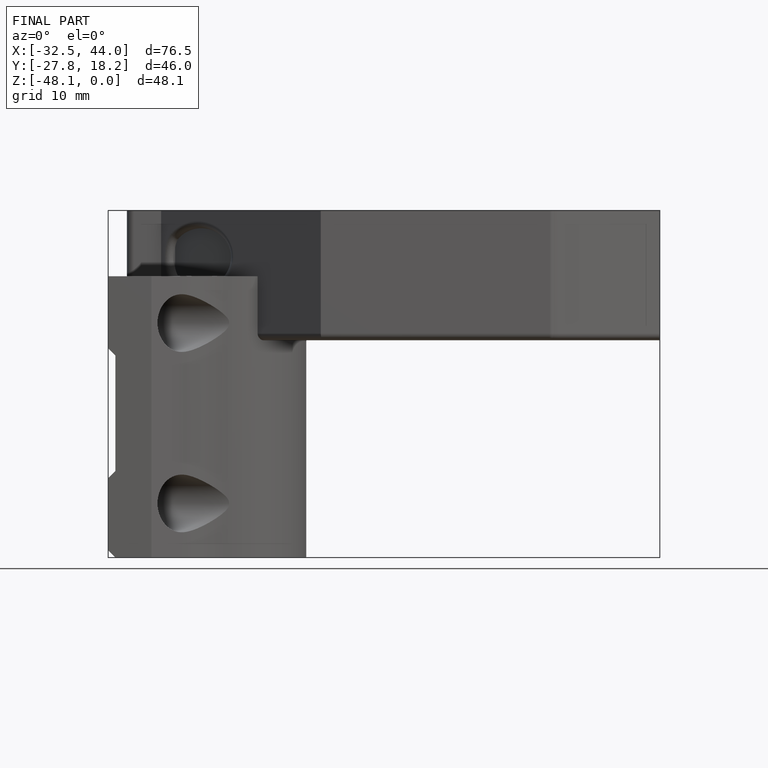
[diagram: finished part — front view with bounding-box wireframe]
